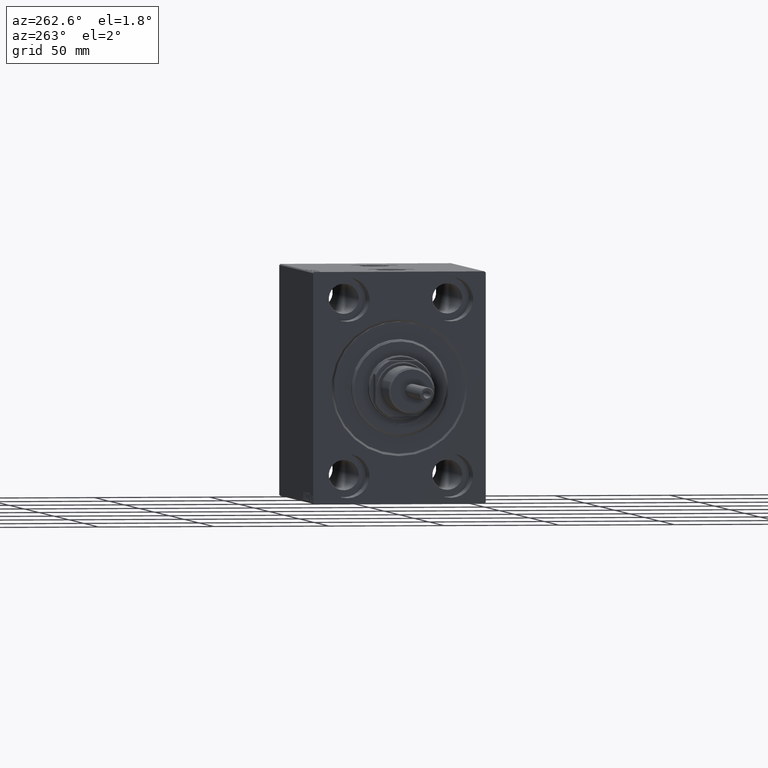
[diagram: clean part render]
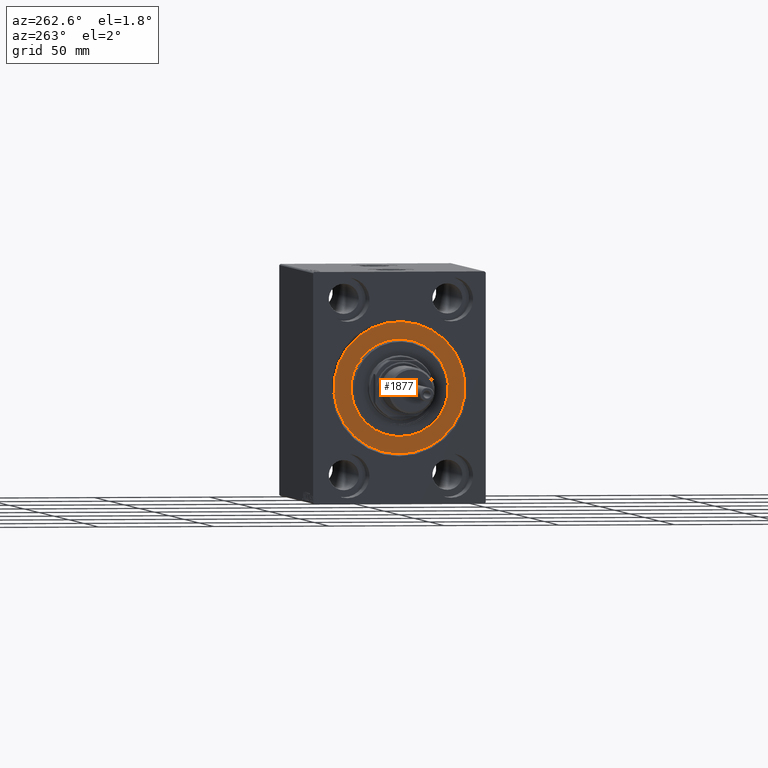
[diagram: same view with one face highlighted and labeled with its STEP entity id]
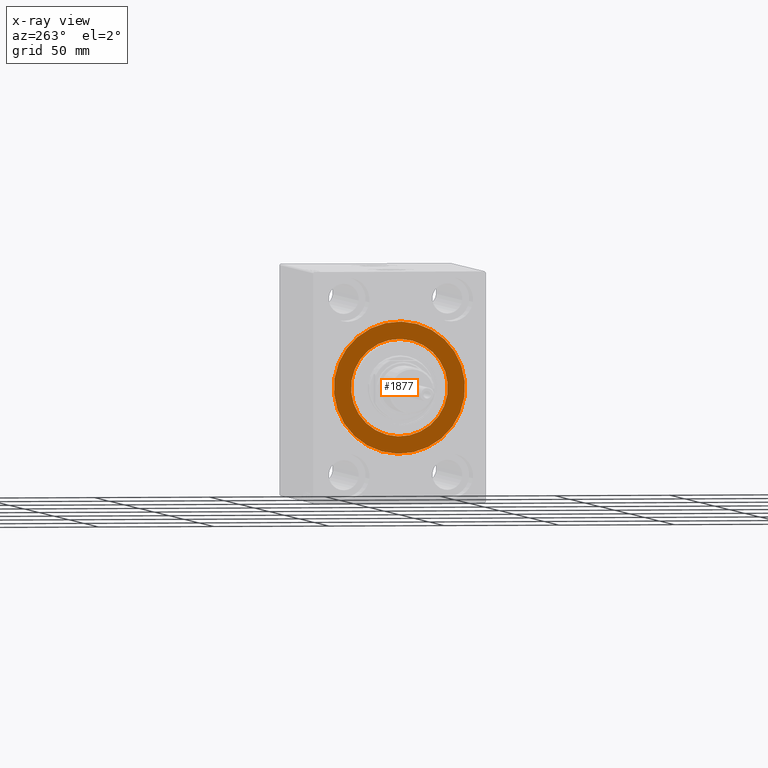
[diagram: x-ray of the same camera — body ghosted, the highlighted face saturated]
A machine part, auxiliary view. The second image highlights one B-rep face of the part: STEP entity #1877.
The next image is the same camera in x-ray: the body ghosted, the highlighted face saturated — about 0% of this face is hidden behind the body in this view.
In plain terms, the highlighted planar face has unit normal (1, 0, -0).
Its self-contained STEP definition (entity closure, byte-faithful):
#1877 = ADVANCED_FACE ( 'NONE', ( #17131, #26949 ), #13768, .F. ) ;
#2875 = AXIS2_PLACEMENT_3D ( 'NONE', #17676, #18137, #9807 ) ;
#4122 = EDGE_LOOP ( 'NONE', ( #35794, #21393 ) ) ;
#4617 = AXIS2_PLACEMENT_3D ( 'NONE', #25483, #17593, #24778 ) ;
#5210 = DIRECTION ( 'NONE',  ( 0.000000000000000000, 0.000000000000000000, -1.000000000000000000 ) ) ;
#5279 = CARTESIAN_POINT ( 'NONE',  ( 0.000000000000000000, 3.490243377569956456E-15, 28.50000000000000000 ) ) ;
#5652 = VERTEX_POINT ( 'NONE', #43319 ) ;
#7317 = EDGE_CURVE ( 'NONE', #5652, #17297, #23912, .T. ) ;
#7633 = VERTEX_POINT ( 'NONE', #41635 ) ;
#8427 = CARTESIAN_POINT ( 'NONE',  ( 0.000000000000000000, 0.000000000000000000, 0.000000000000000000 ) ) ;
#9807 = DIRECTION ( 'NONE',  ( 0.000000000000000000, 0.000000000000000000, -1.000000000000000000 ) ) ;
#12077 = CIRCLE ( 'NONE', #37261, 28.50000000000000000 ) ;
#12142 = DIRECTION ( 'NONE',  ( 1.000000000000000000, -0.000000000000000000, 0.000000000000000000 ) ) ;
#12432 = AXIS2_PLACEMENT_3D ( 'NONE', #43674, #35806, #36043 ) ;
#13768 = PLANE ( 'NONE',  #4617 ) ;
#16762 = EDGE_CURVE ( 'NONE', #7633, #45423, #28643, .T. ) ;
#17131 = FACE_BOUND ( 'NONE', #45446, .T. ) ;
#17297 = VERTEX_POINT ( 'NONE', #5279 ) ;
#17593 = DIRECTION ( 'NONE',  ( -1.000000000000000000, 0.000000000000000000, 0.000000000000000000 ) ) ;
#17676 = CARTESIAN_POINT ( 'NONE',  ( 0.000000000000000000, 0.000000000000000000, 0.000000000000000000 ) ) ;
#18137 = DIRECTION ( 'NONE',  ( 1.000000000000000000, -0.000000000000000000, 0.000000000000000000 ) ) ;
#21393 = ORIENTED_EDGE ( 'NONE', *, *, #27833, .F. ) ;
#21725 = EDGE_CURVE ( 'NONE', #45423, #7633, #33371, .T. ) ;
#22534 = DIRECTION ( 'NONE',  ( -1.000000000000000000, 0.000000000000000000, 0.000000000000000000 ) ) ;
#23003 = DIRECTION ( 'NONE',  ( 0.000000000000000000, 0.000000000000000000, 1.000000000000000000 ) ) ;
#23912 = CIRCLE ( 'NONE', #12432, 28.50000000000000000 ) ;
#24778 = DIRECTION ( 'NONE',  ( 0.000000000000000000, 0.000000000000000000, 1.000000000000000000 ) ) ;
#25483 = CARTESIAN_POINT ( 'NONE',  ( 0.000000000000000000, 0.000000000000000000, 0.000000000000000000 ) ) ;
#26226 = ORIENTED_EDGE ( 'NONE', *, *, #16762, .F. ) ;
#26949 = FACE_OUTER_BOUND ( 'NONE', #4122, .T. ) ;
#27212 = CARTESIAN_POINT ( 'NONE',  ( 0.000000000000000000, 0.000000000000000000, 0.000000000000000000 ) ) ;
#27833 = EDGE_CURVE ( 'NONE', #17297, #5652, #12077, .T. ) ;
#28643 = CIRCLE ( 'NONE', #46941, 21.00000000000000000 ) ;
#31060 = CARTESIAN_POINT ( 'NONE',  ( 0.000000000000000000, 2.571758278209441661E-15, -21.00000000000000000 ) ) ;
#33371 = CIRCLE ( 'NONE', #2875, 21.00000000000000000 ) ;
#35794 = ORIENTED_EDGE ( 'NONE', *, *, #7317, .F. ) ;
#35806 = DIRECTION ( 'NONE',  ( -1.000000000000000000, 0.000000000000000000, 0.000000000000000000 ) ) ;
#36043 = DIRECTION ( 'NONE',  ( 0.000000000000000000, 0.000000000000000000, 1.000000000000000000 ) ) ;
#37261 = AXIS2_PLACEMENT_3D ( 'NONE', #8427, #22534, #23003 ) ;
#41635 = CARTESIAN_POINT ( 'NONE',  ( 0.000000000000000000, 0.000000000000000000, 21.00000000000000000 ) ) ;
#43097 = ORIENTED_EDGE ( 'NONE', *, *, #21725, .F. ) ;
#43319 = CARTESIAN_POINT ( 'NONE',  ( 0.000000000000000000, 0.000000000000000000, -28.50000000000000000 ) ) ;
#43674 = CARTESIAN_POINT ( 'NONE',  ( 0.000000000000000000, 0.000000000000000000, 0.000000000000000000 ) ) ;
#45423 = VERTEX_POINT ( 'NONE', #31060 ) ;
#45446 = EDGE_LOOP ( 'NONE', ( #26226, #43097 ) ) ;
#46941 = AXIS2_PLACEMENT_3D ( 'NONE', #27212, #12142, #5210 ) ;